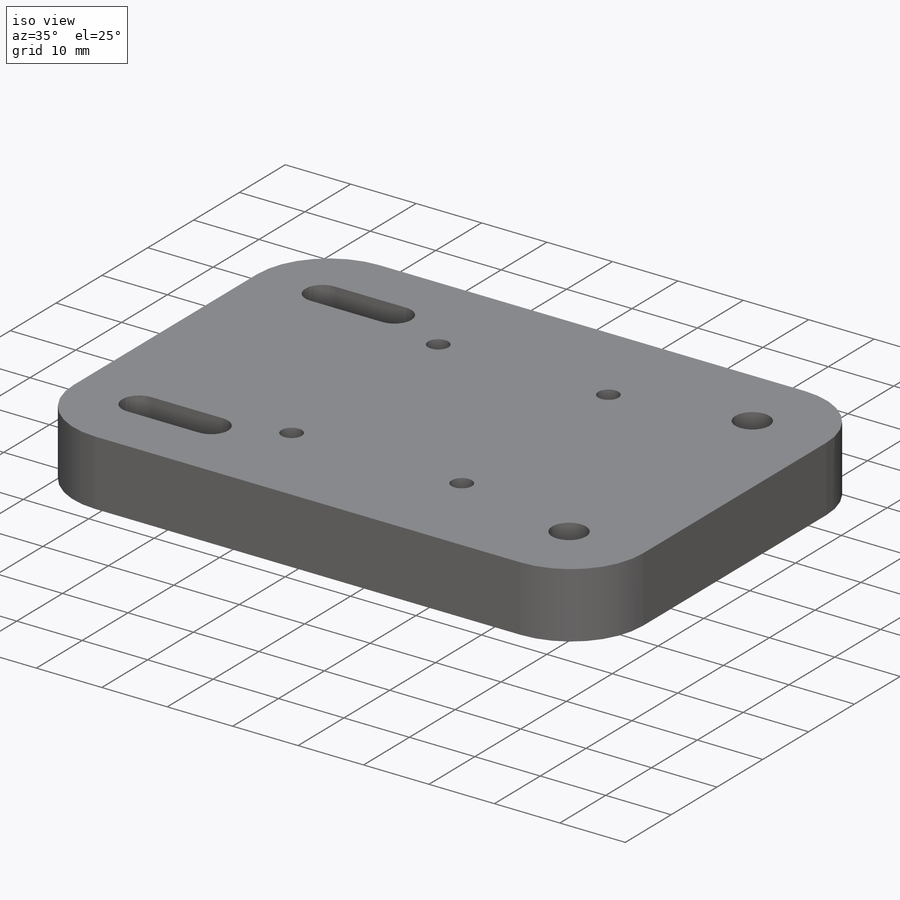
[diagram: iso view]
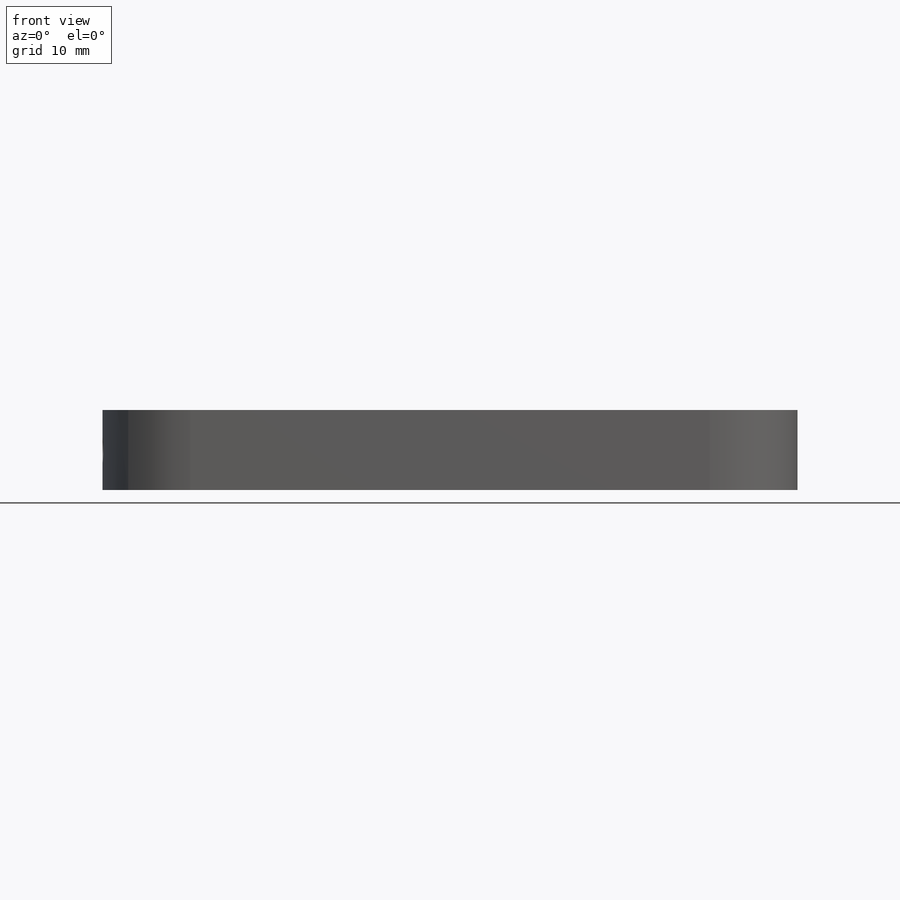
[diagram: front view]
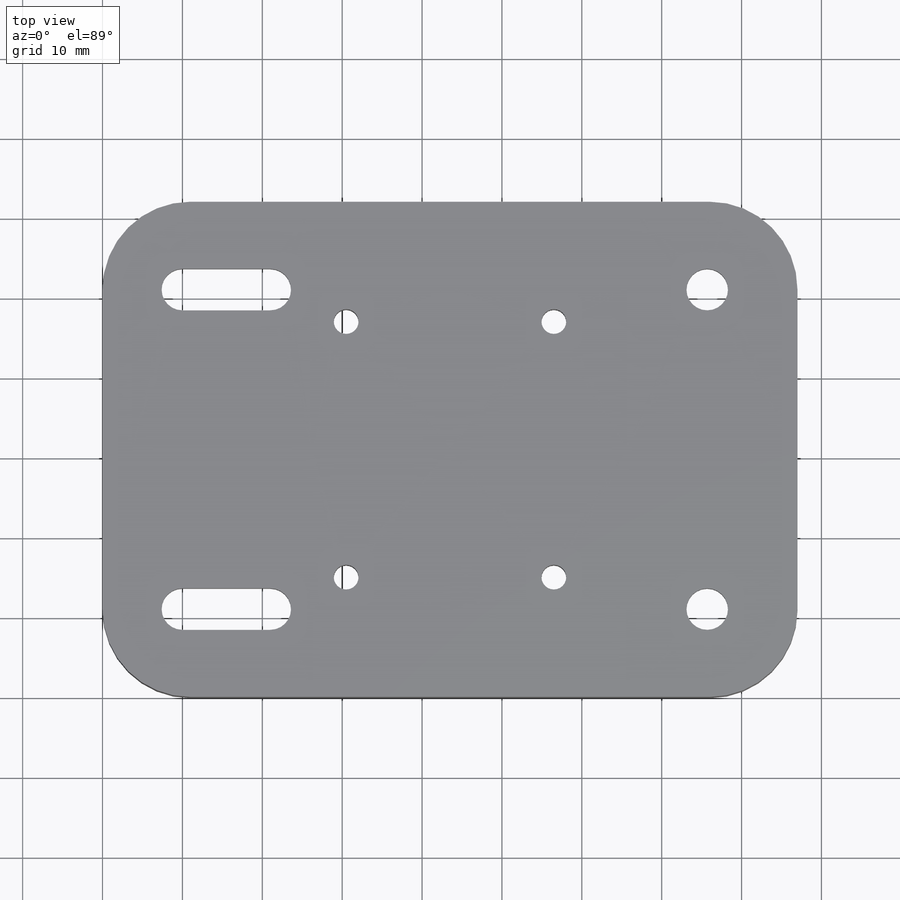
[diagram: top view]
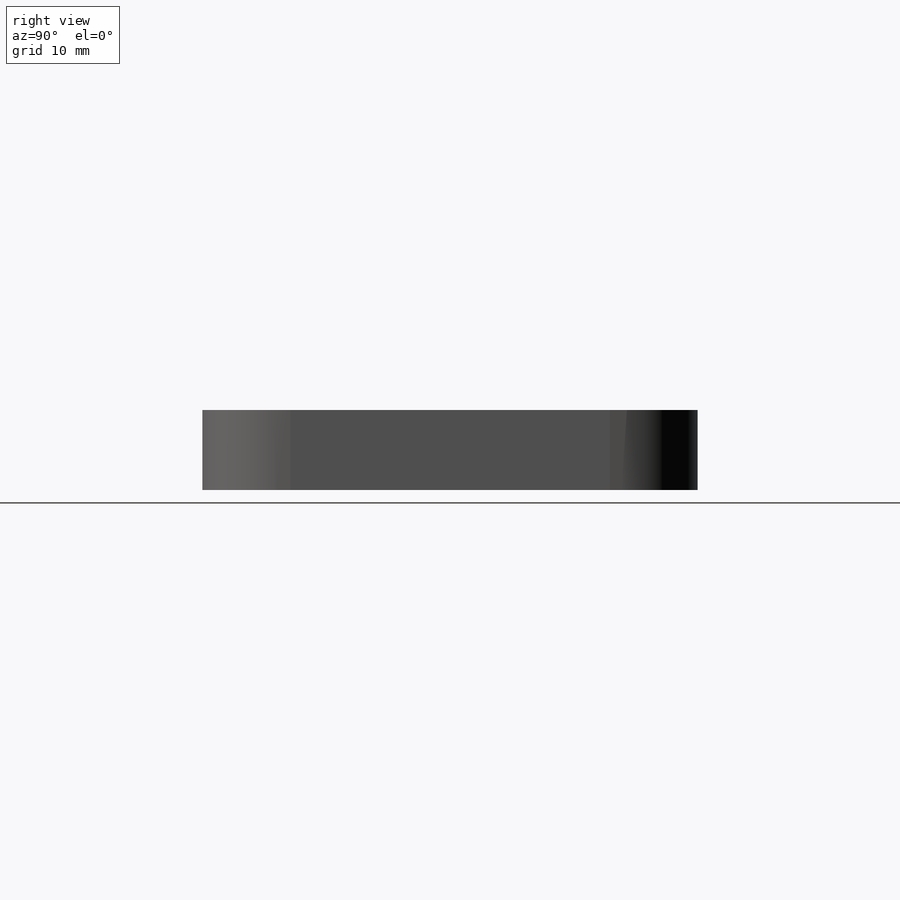
[diagram: right view]
SOLIDWORKS PART (.sldprt)
format: sldprt  version: not decoded by parser v0  size: 406,016 bytes
history: native  units: mm
features: sketch x7, cut_extrude x6, material x1, extrude x1 (+13 scaffold rows collapsed)
feature tree (28):
  scaffold x13  (default folders/planes/origin — collapsed)
  material  "ABS"
  sketch  "Sketch1"  dims[c1.D3=22.0mm c1.D1=87.0mm c1.D2=62.0mm c2.D1=87.0mm c2.D2=62.0mm]
  extrude  "Boss-Extrude1"  Depth=10mm
  sketch  "Sketch8"  dims[c1.D1=5.2mm c1.D2=5.22mm c1.D3=5.2mm c1.D4=5.2mm c1.D5=5.2mm c2.D4=5.2mm c2.D6=5.2mm c2.D3=2.6mm c3.D4=5.2mm c3.D2=11.0mm c3.D3=11.0mm c4.D4=11.0mm c4.D5=11.0mm c5.D4=55.0mm c5.D6=11.0mm c5.D3=10.0mm c6.D4=32.2mm]
  cut_extrude  "Cut-Extrude5"  [1 undecoded]
  sketch  "Sketch9"  dims[D1=8.2mm D2=5.5mm D3=3.0mm D4=3.0mm]
  cut_extrude  "Cut-Extrude6"  Depth=5.4mm
  sketch  "Sketch11"  dims[D1=3.2mm]
  cut_extrude  "Cut-Extrude7"  [1 undecoded]
  sketch  "Sketch12"  dims[D1=5.5mm D2=5.5mm]
  cut_extrude  "Cut-Extrude8"  Depth=3mm
  sketch  "Sketch14"  dims[c1.D1=3.1mm c1.D2=3.1mm c1.D3=3.1mm c1.D4=3.1mm c1.D5=3.1mm c2.D2=26.0mm c2.D3=32.0mm c2.D4=13.0mm c2.D5=16.0mm]
  cut_extrude  "Cut-Extrude9"  [1 undecoded]
  sketch  "Sketch15"  dims[D1=5.6mm]
  cut_extrude  "Cut-Extrude10"  Depth=2.6mm
decode coverage: 11 of 14 modeling features carry decoded parameters
note: 3 parameter values undecoded
summary: no parameter record found for 3 features
note: suppression state not decoded; provenance and decode notes live in map.json
